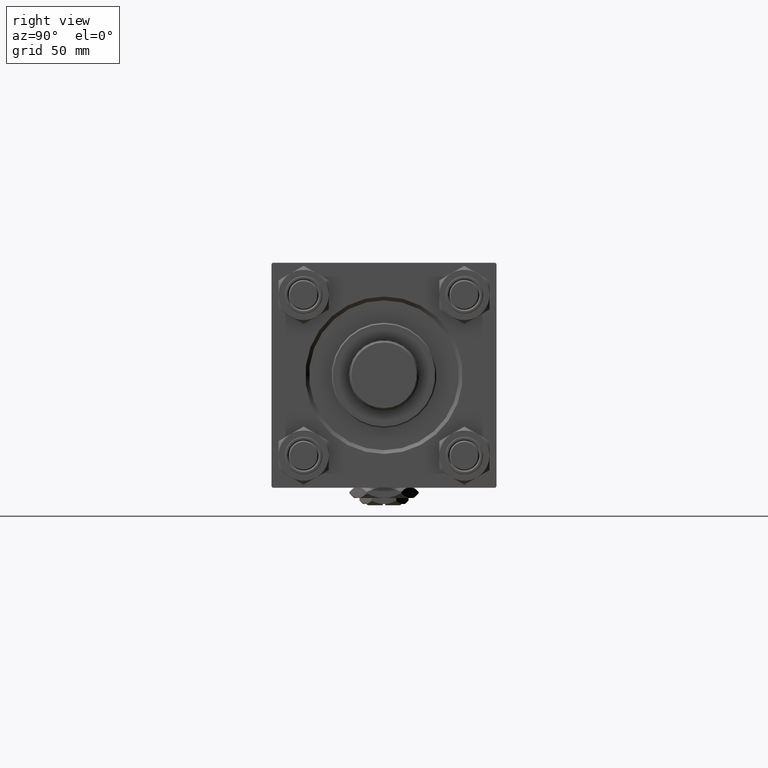
[diagram: clean part render]
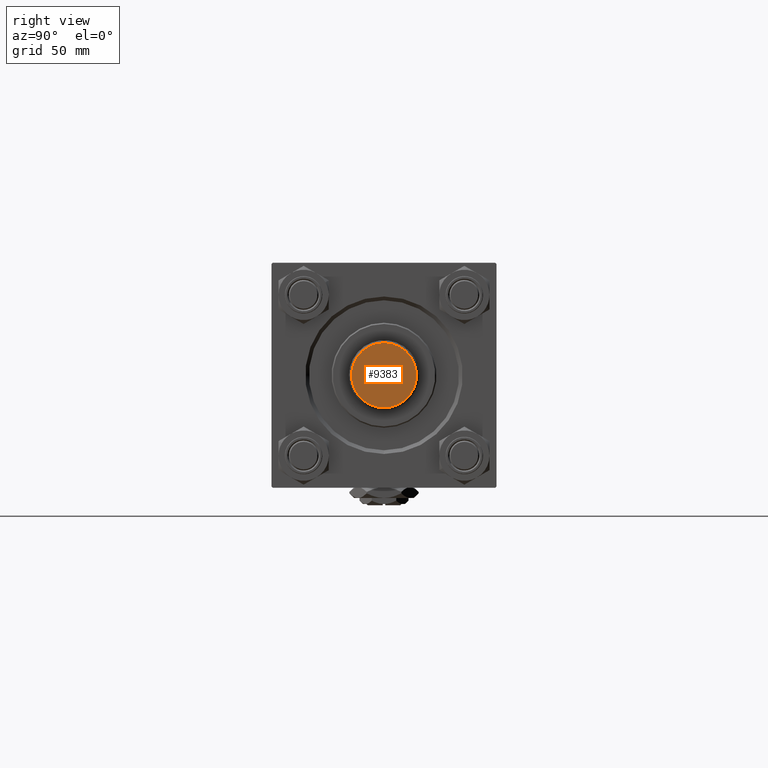
[diagram: same view with one face highlighted and labeled with its STEP entity id]
A machine part, right view. The second image highlights one B-rep face of the part: STEP entity #9383.
In plain terms, the highlighted planar face has unit normal (1, 0, 0).
Its self-contained STEP definition (entity closure, byte-faithful):
#607 = CIRCLE ( 'NONE', #20889, 13.00000000000000000 ) ;
#2279 = DIRECTION ( 'NONE',  ( 1.000000000000000000, 0.000000000000000000, 0.000000000000000000 ) ) ;
#9383 = ADVANCED_FACE ( 'NONE', ( #33857 ), #49970, .T. ) ;
#10476 = VERTEX_POINT ( 'NONE', #25627 ) ;
#13742 = DIRECTION ( 'NONE',  ( 0.000000000000000000, 0.000000000000000000, 1.000000000000000000 ) ) ;
#17611 = CIRCLE ( 'NONE', #31963, 13.00000000000000000 ) ;
#18152 = AXIS2_PLACEMENT_3D ( 'NONE', #26433, #13742, #30415 ) ;
#20889 = AXIS2_PLACEMENT_3D ( 'NONE', #26903, #43020, #31652 ) ;
#25627 = CARTESIAN_POINT ( 'NONE',  ( 13.00000000000000000, 0.000000000000000000, 0.000000000000000000 ) ) ;
#26433 = CARTESIAN_POINT ( 'NONE',  ( 0.000000000000000000, 0.000000000000000000, 0.000000000000000000 ) ) ;
#26903 = CARTESIAN_POINT ( 'NONE',  ( 0.000000000000000000, 0.000000000000000000, 0.000000000000000000 ) ) ;
#30415 = DIRECTION ( 'NONE',  ( 1.000000000000000000, 0.000000000000000000, -0.000000000000000000 ) ) ;
#30859 = CARTESIAN_POINT ( 'NONE',  ( 0.000000000000000000, 0.000000000000000000, 0.000000000000000000 ) ) ;
#31652 = DIRECTION ( 'NONE',  ( 1.000000000000000000, 0.000000000000000000, 0.000000000000000000 ) ) ;
#31963 = AXIS2_PLACEMENT_3D ( 'NONE', #30859, #38508, #2279 ) ;
#32456 = ORIENTED_EDGE ( 'NONE', *, *, #48194, .T. ) ;
#33857 = FACE_OUTER_BOUND ( 'NONE', #37375, .T. ) ;
#37375 = EDGE_LOOP ( 'NONE', ( #48492, #32456 ) ) ;
#38508 = DIRECTION ( 'NONE',  ( 0.000000000000000000, 0.000000000000000000, 1.000000000000000000 ) ) ;
#41231 = CARTESIAN_POINT ( 'NONE',  ( -13.00000000000000000, 1.622657008870242882E-15, 0.000000000000000000 ) ) ;
#42376 = VERTEX_POINT ( 'NONE', #41231 ) ;
#43020 = DIRECTION ( 'NONE',  ( 0.000000000000000000, 0.000000000000000000, 1.000000000000000000 ) ) ;
#48194 = EDGE_CURVE ( 'NONE', #42376, #10476, #607, .T. ) ;
#48492 = ORIENTED_EDGE ( 'NONE', *, *, #50233, .T. ) ;
#49970 = PLANE ( 'NONE',  #18152 ) ;
#50233 = EDGE_CURVE ( 'NONE', #10476, #42376, #17611, .T. ) ;